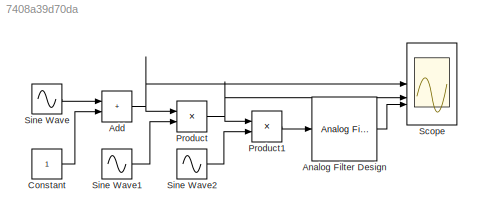
MODEL slx_7408a39d70da
KIND model
CONFIG AbsTol = auto
CONFIG EnableMultiTasking = off
CONFIG FixedStep = auto
CONFIG MaxStep = auto
CONFIG MinStep = auto
CONFIG RelTol = 1e-3
CONFIG SampleTimeConstraint = Unconstrained
CONFIG SolverName = VariableStepAuto
CONFIG StartTime = 0.0
CONFIG StopTime = 10.0
BLOCK [Sum] Add
  IconShape = rectangular
BLOCK [Reference] Analog Filter Design  REF=dspfdesign/Analog
Filter Design
  SourceBlock = dspfdesign/Analog\nFilter Design
  SourceType = Analog Filter Design
BLOCK [Constant] Constant
BLOCK [Product] Product
BLOCK [Product] Product1
BLOCK [Scope] Scope
  Floating = off
  NumInputPorts = 3
  ScopeSpecificationString = Simulink.scopes.TimeScopeBlockCfg('CurrentConfiguration', extmgr.ConfigurationSet(extmgr.Configuration('Core','General UI',true),extmgr.Configuration('Core','Source UI',true),extmgr.Configuration('Sources','WiredSimulink',true,'SampleTime','1/10000'),extmgr.Configuration('Visuals','Time Domain',true,'SerializedDisplays',{struct('MinYLimReal','-2.41696','MaxYLimReal','2.49077','YLabelReal','','MinY...<+1408ch>
BLOCK [Sin] Sine Wave
  Frequency = 5
  SampleTime = 0
BLOCK [Sin] Sine Wave1
  Frequency = 20
  SampleTime = 0
BLOCK [Sin] Sine Wave2
  Frequency = 20
  SampleTime = 0
NET Add:1 -> Product:1, Scope:1
LINE Analog Filter Design:1 -> Scope:3
LINE Constant:1 -> Add:2
LINE Product1:1 -> Analog Filter Design:1
NET Product:1 -> Product1:1, Scope:2
LINE Sine Wave1:1 -> Product:2
LINE Sine Wave2:1 -> Product1:2
LINE Sine Wave:1 -> Add:1
note: NET lines group one-source signal fan-out (src -> all destinations, sorted); 1:1 wires keep LINE
